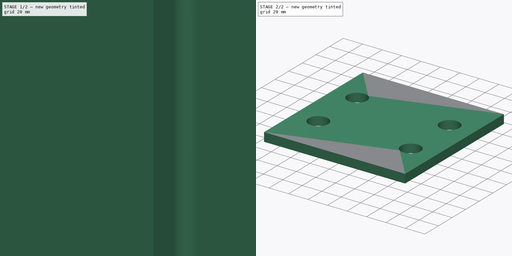
[diagram: build sequence overview — one tinted view per stage of 2, left to right]
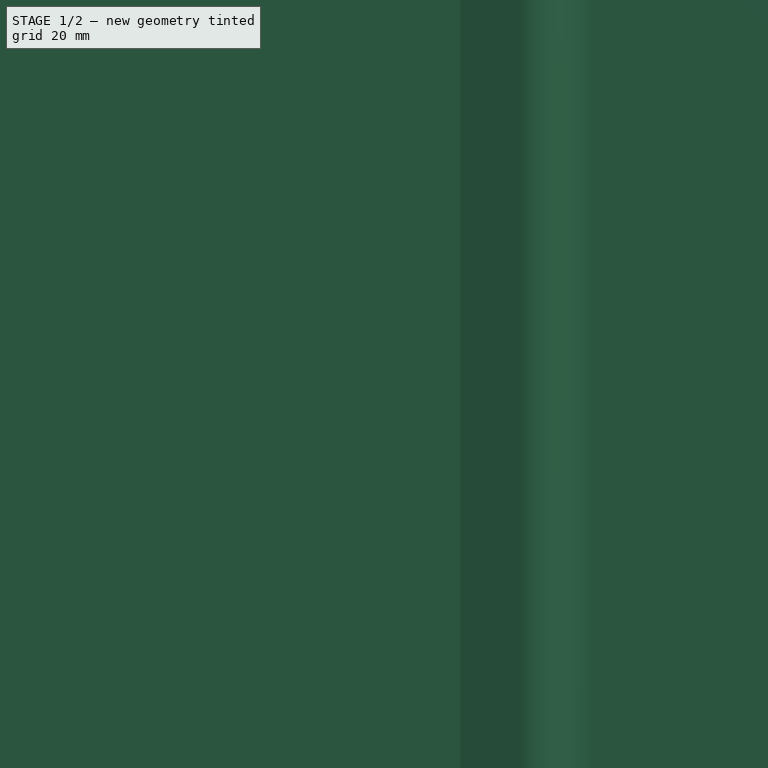
[diagram: stage 1 of 2 — iso view after this stage's code; geometry added in this stage tinted green]
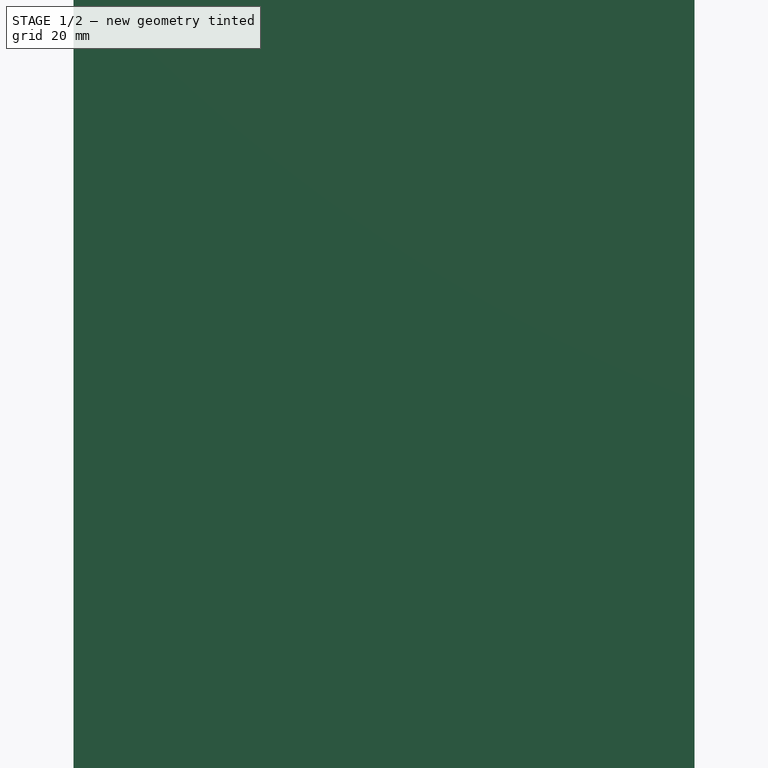
[diagram: stage 1 of 2 — front view after this stage's code; geometry added in this stage tinted green]
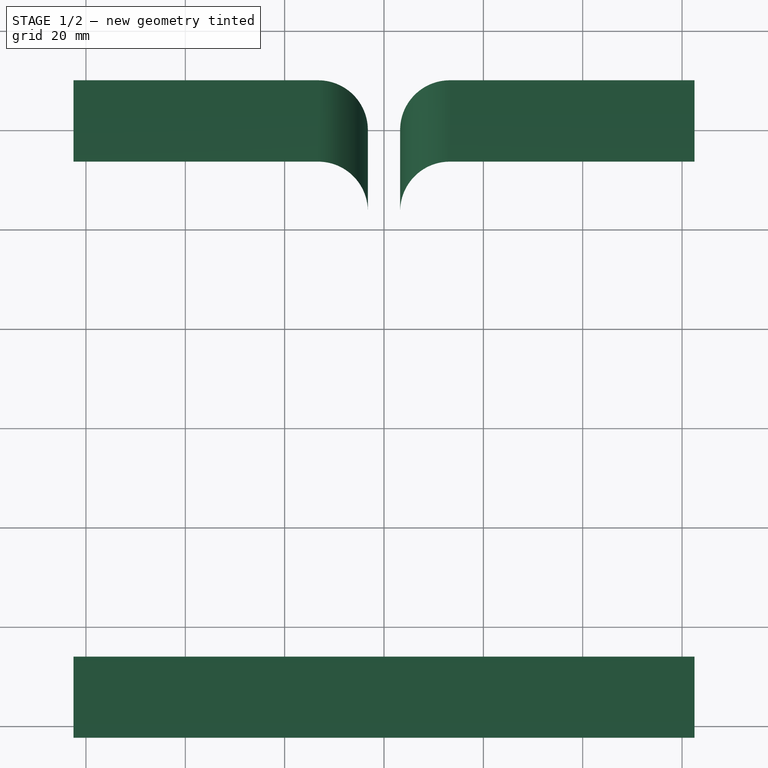
[diagram: stage 1 of 2 — top view after this stage's code; geometry added in this stage tinted green]
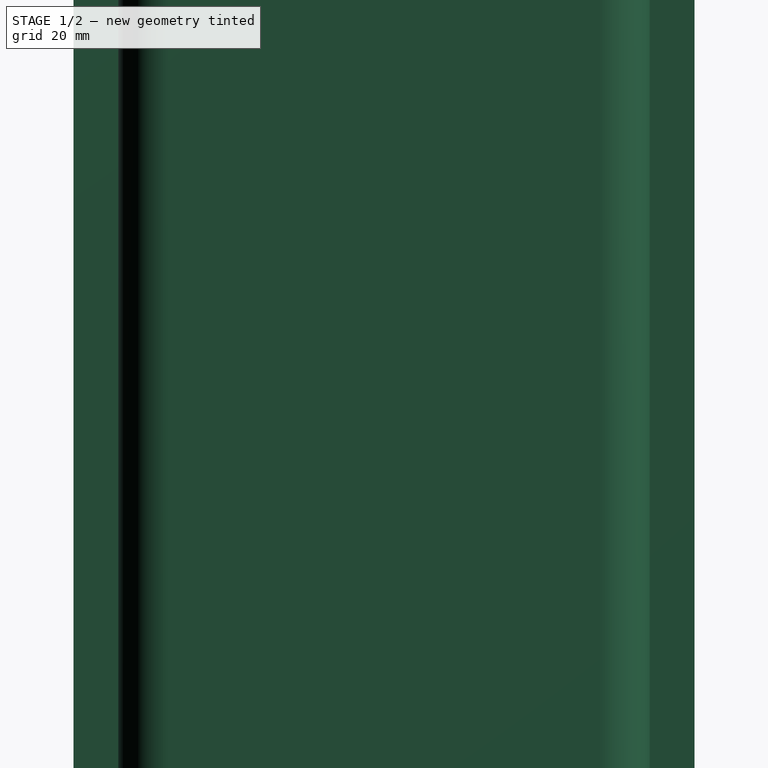
[diagram: stage 1 of 2 — right view after this stage's code; geometry added in this stage tinted green]
FCSTD DOCUMENT  (FreeCAD 1.0R39319 (Git))
Label: 03_Pst_H
License: All rights reserved
objects: Part::FeaturePython×1, Sketcher::SketchObject×1, PartDesign::Pad×1, App::Part×1
note: 6 computed .brp shape members not serialized (recipe doc carries the construction recipe); baked Part::Feature solids carry a one-line shape summary decoded from their .brp

FEATURE [Part::FeaturePython] HShapeSteel  # WARN: FeaturePython — macro-defined, semantics opaque (R4)
  B = 125
  H = 125
  L = 1000
  Placement = pos=(0,0,0) rot=(1,0,0;1.5708rad)
  Solid = true
  g0 = 7.85
  mass = 23.796
  size = 1
  standard = SS_Wide
  t1 = 6
  t2 = 8
  type = 02_H_Shape
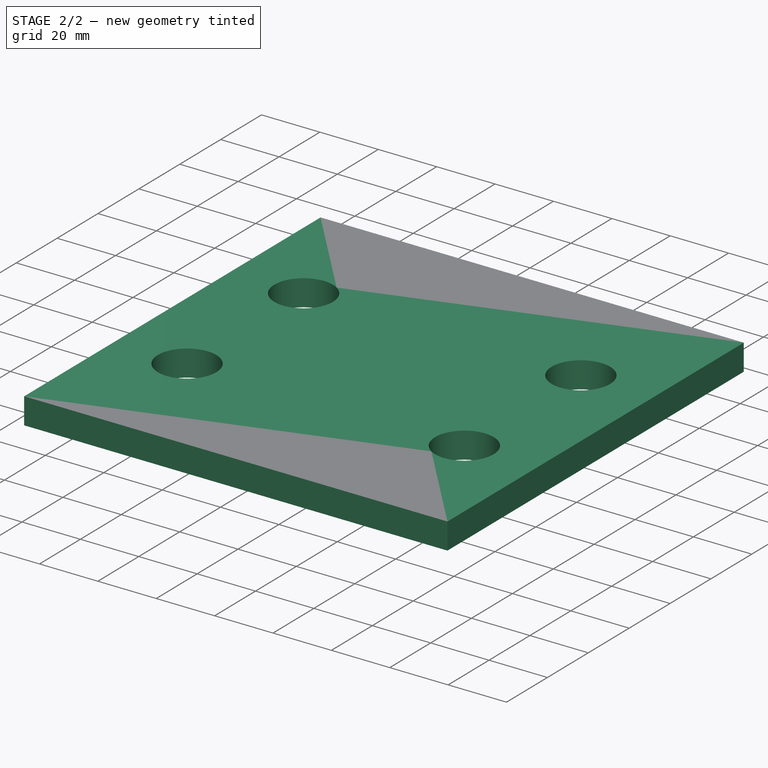
[diagram: stage 2 of 2 — iso view after this stage's code; geometry added in this stage tinted green]
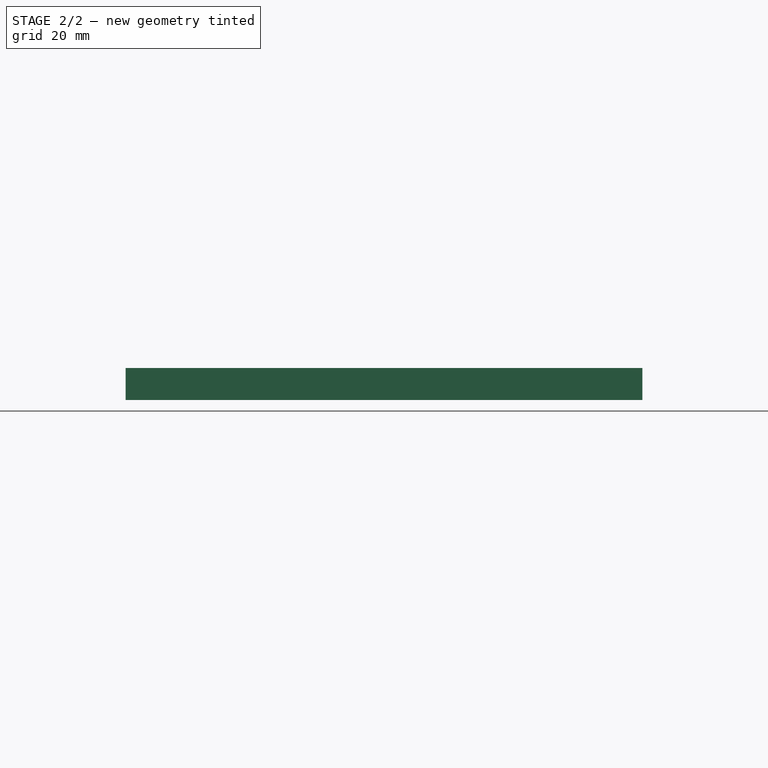
[diagram: stage 2 of 2 — front view after this stage's code; geometry added in this stage tinted green]
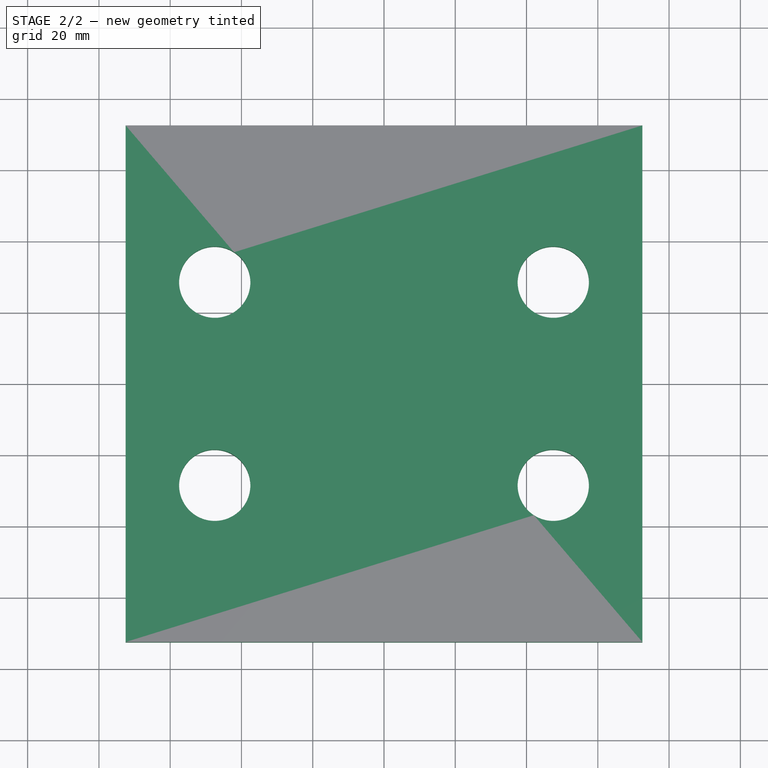
[diagram: stage 2 of 2 — top view after this stage's code; geometry added in this stage tinted green]
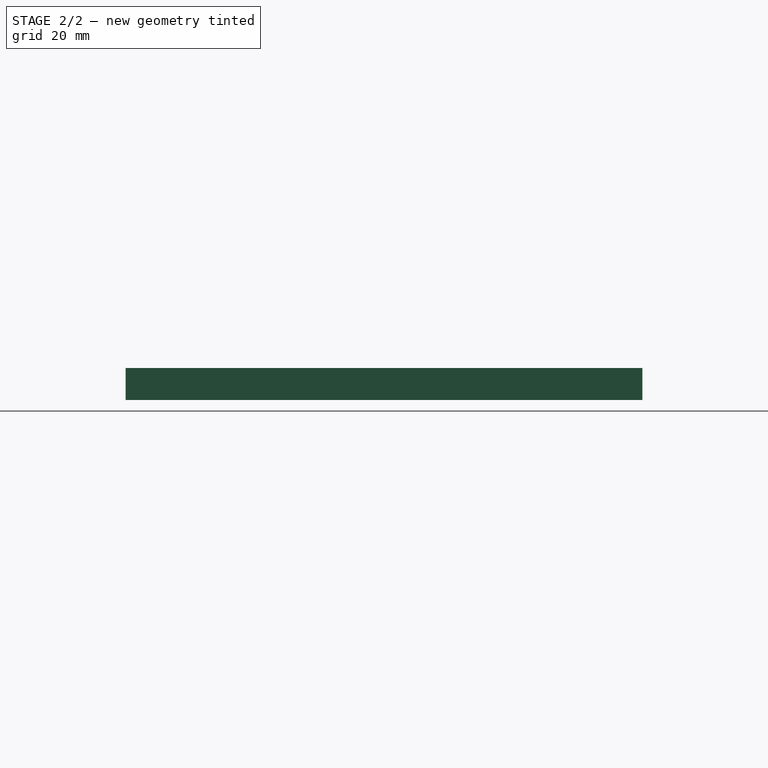
[diagram: stage 2 of 2 — right view after this stage's code; geometry added in this stage tinted green]
FEATURE [Sketcher::SketchObject] Sketch002
  ArcFitTolerance = 1e-06
  AttachmentSupport = -> [HShapeSteel]
  ExternalGeometry = -> [HShapeSteel]
  FullyConstrained = true
  MakeInternals = false
  MapMode = 5
  Placement = pos=(0,0,0) rot=(1,0,0;3.14159rad)
  sketch-geometry (9):
    g0: LineSegment StartX=-72.5 StartY=-72.5 StartZ=0 EndX=72.5 EndY=-72.5 EndZ=0
    g1: LineSegment StartX=72.5 StartY=-72.5 StartZ=0 EndX=72.5 EndY=72.5 EndZ=0
    g2: LineSegment StartX=72.5 StartY=72.5 StartZ=0 EndX=-72.5 EndY=72.5 EndZ=0
    g3: LineSegment StartX=-72.5 StartY=72.5 StartZ=0 EndX=-72.5 EndY=-72.5 EndZ=0
    g4: GeomPoint [constr] X=0 Y=0 Z=0
    g5: Circle CenterX=-47.5 CenterY=28.5 CenterZ=0 NormalX=0 NormalY=0 NormalZ=1 AngleXU=0 Radius=10
    g6: Circle CenterX=-47.5 CenterY=-28.5 CenterZ=0 NormalX=0 NormalY=0 NormalZ=1 AngleXU=0 Radius=10
    g7: Circle CenterX=47.5 CenterY=28.5 CenterZ=0 NormalX=0 NormalY=0 NormalZ=1 AngleXU=0 Radius=10
    g8: Circle CenterX=47.5 CenterY=-28.5 CenterZ=0 NormalX=0 NormalY=0 NormalZ=1 AngleXU=0 Radius=10
  constraints (24):
    c: Coincident(g0,g1)
    c: Coincident(g1,g2)
    c: Coincident(g2,g3)
    c: Coincident(g3,g0)
    c: Horizontal(g0)
    c: Horizontal(g2)
    c: Vertical(g1)
    c: Vertical(g3)
    c: Symmetric(g2,g0,g4)
    c: Coincident(g4,g-1)
    c: Diameter(g5) = 20
    c: Equal(g5,g6)
    c: Equal(g6,g7)
    c: Equal(g7,g8)
    c: Horizontal(g5,g7)
    c: Horizontal(g6,g8)
    c: Vertical(g5,g6)
    c: Vertical(g7,g8)
    c: DistanceX(g2,g5) = 25
    c: DistanceY(g-3,g1) = 10
    c: DistanceX(g-3,g1) = 10
    c: DistanceX(g7,g1) = 25
    c: DistanceY(g7,g-5) = 25
    c: DistanceY(g-6,g8) = 25
FEATURE [PartDesign::Pad] Pad001  label="plt001"
  Direction = (0,0,-1)
  Length = 9
  Length2 = 10
  Placement = pos=(0,0,0) rot=(1,0,0;1.5708rad)
  Profile = -> Sketch002
  ReferenceAxis = -> Sketch002 [N_Axis]
  Refine = true
  Suppressed = false
  Type = 0
  expr: Length = 9 mm
FEATURE [App::Part] Part001  label="Pst_H"
  Group = -> [HShapeSteel,Sketch002,Pad001]
  JPN = 支柱
  Origin = -> Origin
  Placement = pos=(-575.756,-130.056,250.277) rot=(0,0,1;0rad)
  Standard = H125x125x6.5/9 , H=1000
  count = 1
  g0 = 7.85
  mass = 24.9785
  material = SS41
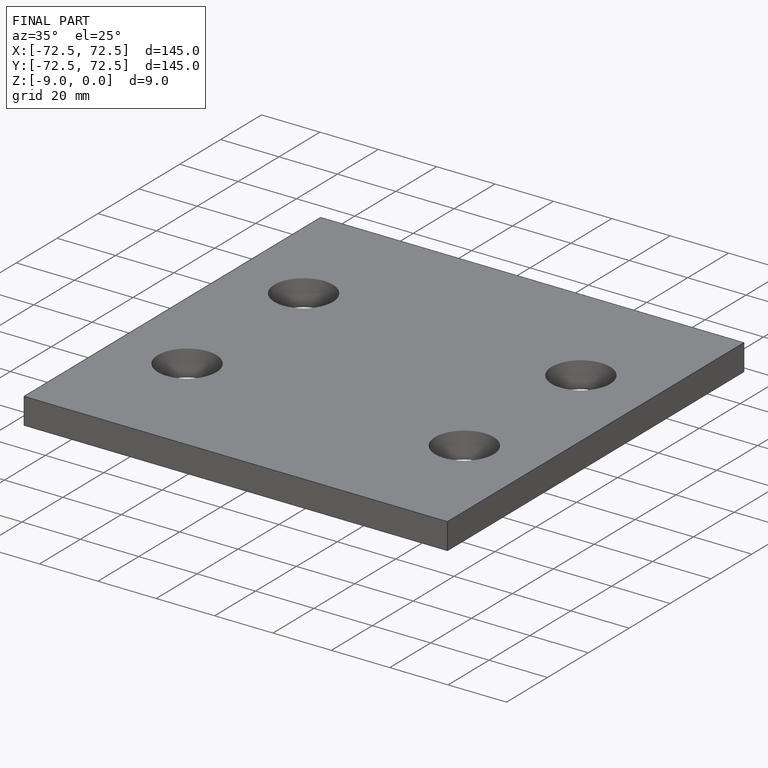
[diagram: finished part — iso view with bounding-box wireframe]
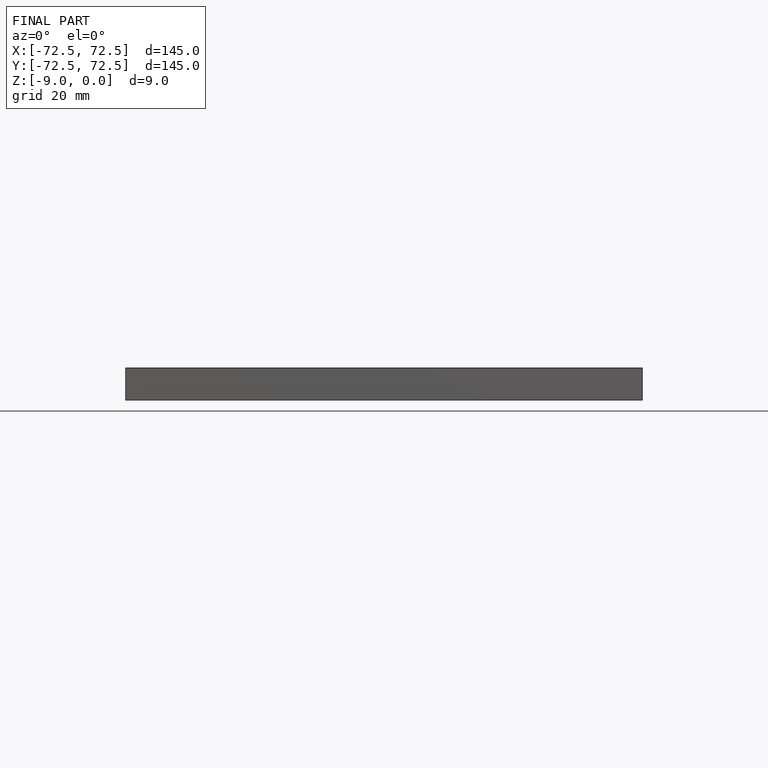
[diagram: finished part — front view with bounding-box wireframe]
